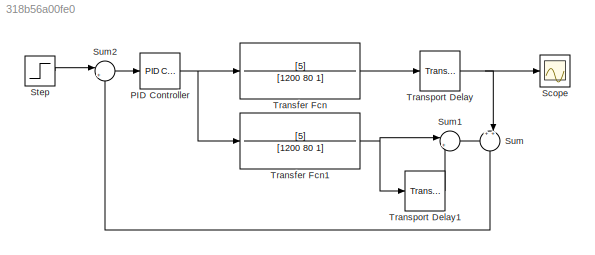
MODEL slx_318b56a00fe0
KIND model
CONFIG AbsTol = auto
CONFIG EnableMultiTasking = off
CONFIG FixedStep = auto
CONFIG MaxStep = auto
CONFIG MinStep = auto
CONFIG RelTol = 1e-3
CONFIG SampleTimeConstraint = Unconstrained
CONFIG SolverName = VariableStepAuto
CONFIG StartTime = 0.0
CONFIG StopTime = 200
BLOCK [Reference] PID Controller  REF=slpidlib/PID Controller
  LibrarySourceBlock = simulink/Continuous/PID Controller
  SourceBlock = slpidlib/PID Controller
  SourceType = PID 1dof
BLOCK [Scope] Scope
  Floating = off
  NumInputPorts = 1
  ScopeSpecificationString = Simulink.scopes.TimeScopeBlockCfg('CurrentConfiguration', extmgr.ConfigurationSet(extmgr.Configuration('Core','General UI',true),extmgr.Configuration('Core','Source UI',true),extmgr.Configuration('Sources','WiredSimulink',true),extmgr.Configuration('Visuals','Time Domain',true,'SerializedDisplays',{struct('MinYLimReal','-0.12644','MaxYLimReal','1.13799','YLabelReal','','MinYLimMag','0.00000','MaxY...<+1390ch>
BLOCK [Step] Step
  SampleTime = 0
BLOCK [Sum] Sum
  Inputs = ++|
  NameLocation = left
BLOCK [Sum] Sum1
  Inputs = |+-
BLOCK [Sum] Sum2
  Inputs = |+-
BLOCK [TransferFcn] Transfer Fcn
  Denominator = [1200 80 1]
  Numerator = [5]
BLOCK [TransferFcn] Transfer Fcn1
  Denominator = [1200 80 1]
  Numerator = [5]
BLOCK [TransportDelay] Transport Delay
  DelayTime = 10
BLOCK [TransportDelay] Transport Delay1
  DelayTime = 10
NET PID Controller:1 -> Transfer Fcn1:1, Transfer Fcn:1
LINE Step:1 -> Sum2:1
LINE Sum1:1 -> Sum:1
LINE Sum2:1 -> PID Controller:1
LINE Sum:1 -> Sum2:2
NET Transfer Fcn1:1 -> Sum1:1, Transport Delay1:1
LINE Transfer Fcn:1 -> Transport Delay:1
LINE Transport Delay1:1 -> Sum1:2
NET Transport Delay:1 -> Scope:1, Sum:2
note: NET lines group one-source signal fan-out (src -> all destinations, sorted); 1:1 wires keep LINE
